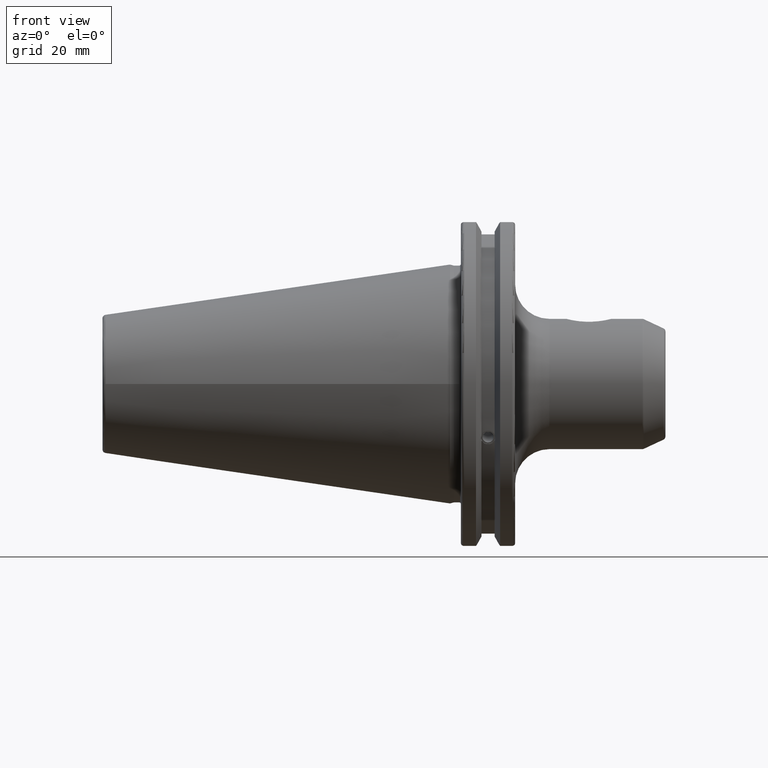
[diagram: clean part render]
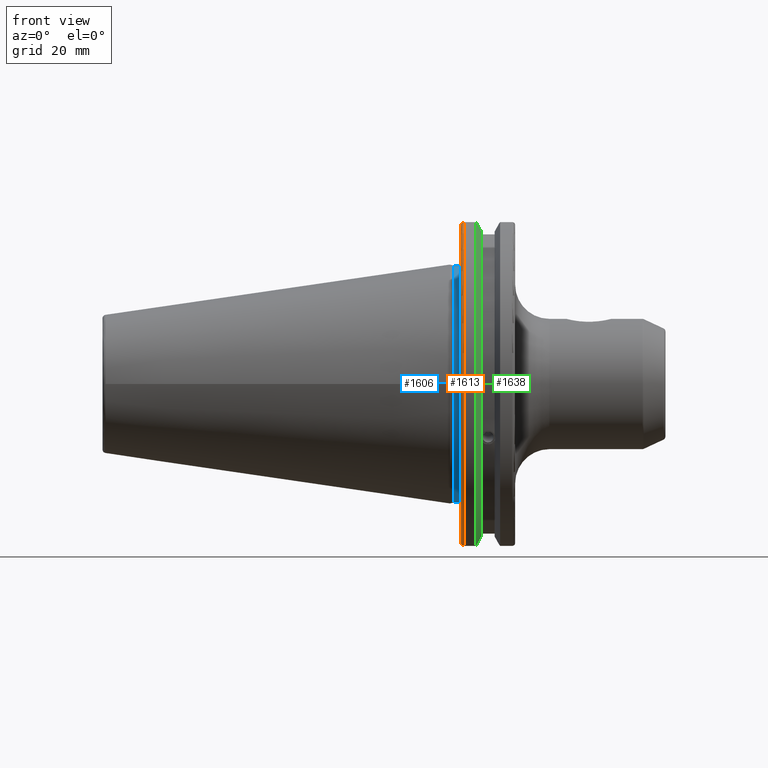
[diagram: same view with three faces highlighted in distinct colors, each labeled with its STEP entity id]
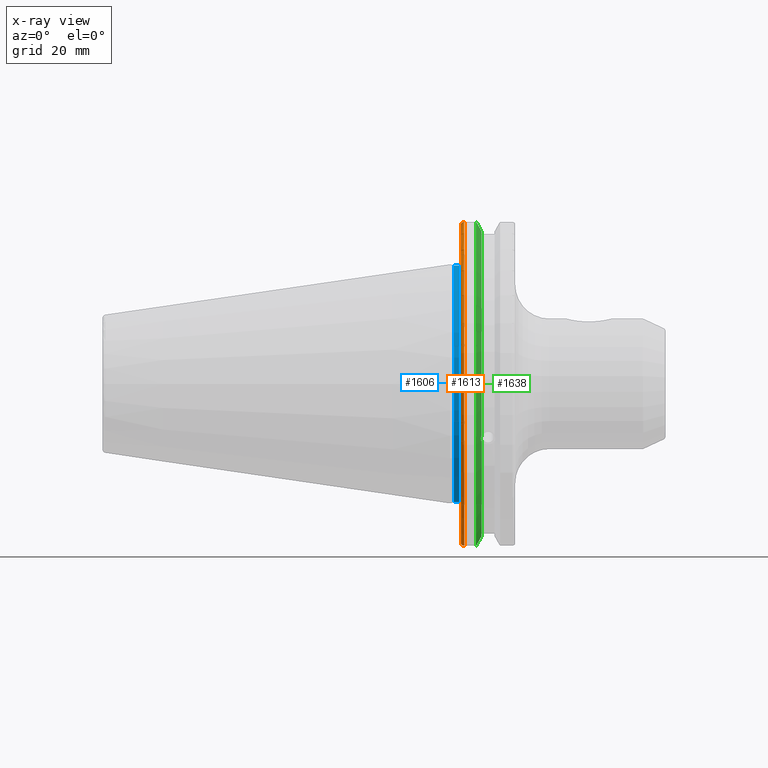
[diagram: x-ray of the same camera — body ghosted, the three highlighted faces saturated]
A machine part, front view with three faces highlighted in distinct colors.
The next image is the same camera in x-ray (body ghosted, the three faces saturated) — at least one of them is partly hidden behind the body in this view.
Their STEP definitions:

[orange] entity #1613 — the highlighted toroidal blend (fillet) surface has major radius 48.2125 mm and minor (blend) radius 1 mm.
#61=TOROIDAL_SURFACE('',#1785,48.2125,1.);
#167=CIRCLE('',#1773,48.2125);
#172=CIRCLE('',#1786,49.2125);
#243=FACE_OUTER_BOUND('',#351,.T.);
#351=EDGE_LOOP('',(#1369,#1370,#1371,#1372,#1373,#1374));
#435=B_SPLINE_CURVE_WITH_KNOTS('',3,(#3223,#3224,#3225,#3226,#3227,#3228),
 .UNSPECIFIED.,.F.,.F.,(4,2,4),(0.0976892167532858,0.112000071948292,0.150881870548587),
 .UNSPECIFIED.);
#436=B_SPLINE_CURVE_WITH_KNOTS('',3,(#3249,#3250,#3251,#3252,#3253,#3254),
 .UNSPECIFIED.,.F.,.F.,(4,2,4),(0.452859340315922,0.491741138916218,0.506051994111223),
 .UNSPECIFIED.);
#437=B_SPLINE_CURVE_WITH_KNOTS('',3,(#3258,#3259,#3260,#3261,#3262,#3263,
#3264,#3265),.UNSPECIFIED.,.F.,.F.,(4,2,2,4),(-0.104075769062722,-0.0730268503455485,
-0.034363987365627,0.),.UNSPECIFIED.);
#438=B_SPLINE_CURVE_WITH_KNOTS('',3,(#3268,#3269,#3270,#3271,#3272,#3273,
#3274,#3275),.UNSPECIFIED.,.F.,.F.,(4,2,2,4),(0.,0.0343639873656262,0.073026850345548,
0.104075769062723),.UNSPECIFIED.);
#750=VERTEX_POINT('',#3101);
#751=VERTEX_POINT('',#3102);
#776=VERTEX_POINT('',#3222);
#782=VERTEX_POINT('',#3247);
#783=VERTEX_POINT('',#3257);
#784=VERTEX_POINT('',#3266);
#951=EDGE_CURVE('',#750,#751,#167,.T.);
#985=EDGE_CURVE('',#776,#750,#435,.T.);
#995=EDGE_CURVE('',#751,#782,#436,.T.);
#997=EDGE_CURVE('',#782,#783,#437,.T.);
#998=EDGE_CURVE('',#783,#784,#172,.T.);
#999=EDGE_CURVE('',#784,#776,#438,.T.);
#1369=ORIENTED_EDGE('',*,*,#997,.T.);
#1370=ORIENTED_EDGE('',*,*,#998,.T.);
#1371=ORIENTED_EDGE('',*,*,#999,.T.);
#1372=ORIENTED_EDGE('',*,*,#985,.T.);
#1373=ORIENTED_EDGE('',*,*,#951,.T.);
#1374=ORIENTED_EDGE('',*,*,#995,.T.);
#1613=ADVANCED_FACE('',(#243),#61,.T.);
#1773=AXIS2_PLACEMENT_3D('',#3103,#2093,#2094);
#1785=AXIS2_PLACEMENT_3D('',#3256,#2144,#2145);
#1786=AXIS2_PLACEMENT_3D('',#3267,#2146,#2147);
#2093=DIRECTION('center_axis',(1.,0.,0.));
#2094=DIRECTION('ref_axis',(0.,-1.,1.60812264967664E-16));
#2144=DIRECTION('center_axis',(1.,0.,0.));
#2145=DIRECTION('ref_axis',(0.,0.,-1.));
#2146=DIRECTION('center_axis',(-1.,0.,0.));
#2147=DIRECTION('ref_axis',(0.,-1.,1.60812264967664E-16));
#3101=CARTESIAN_POINT('',(3.175,-12.95,46.4407434937254));
#3102=CARTESIAN_POINT('',(3.175,-12.95,-46.4407434937254));
#3103=CARTESIAN_POINT('Origin',(3.175,0.,0.));
#3222=CARTESIAN_POINT('',(3.31949794294344,-12.95,46.9780755322918));
#3223=CARTESIAN_POINT('Ctrl Pts',(3.31949794294344,-12.95,46.9780755322918));
#3224=CARTESIAN_POINT('Ctrl Pts',(3.29341556483839,-12.95,46.9333752207329));
#3225=CARTESIAN_POINT('Ctrl Pts',(3.27115672912336,-12.95,46.887363294568));
#3226=CARTESIAN_POINT('Ctrl Pts',(3.20453530071253,-12.95,46.7230464903732));
#3227=CARTESIAN_POINT('Ctrl Pts',(3.175,-12.95,46.5703494890597));
#3228=CARTESIAN_POINT('Ctrl Pts',(3.175,-12.95,46.4407434937254));
#3247=CARTESIAN_POINT('',(3.31949794294343,-12.95,-46.9780755322917));
#3249=CARTESIAN_POINT('Ctrl Pts',(3.175,-12.95,-46.4407434937254));
#3250=CARTESIAN_POINT('Ctrl Pts',(3.175,-12.95,-46.5703494890597));
#3251=CARTESIAN_POINT('Ctrl Pts',(3.20453530071253,-12.95,-46.7230464903732));
#3252=CARTESIAN_POINT('Ctrl Pts',(3.27115672912336,-12.95,-46.887363294568));
#3253=CARTESIAN_POINT('Ctrl Pts',(3.29341556483838,-12.95,-46.9333752207329));
#3254=CARTESIAN_POINT('Ctrl Pts',(3.31949794294343,-12.95,-46.9780755322917));
#3256=CARTESIAN_POINT('Origin',(4.175,0.,0.));
#3257=CARTESIAN_POINT('',(4.175,-13.4317035994433,-47.3440544806494));
#3258=CARTESIAN_POINT('Ctrl Pts',(3.31949794294343,-12.95,-46.9780755322917));
#3259=CARTESIAN_POINT('Ctrl Pts',(3.36785032278753,-13.0300321736484,-47.0388807469102));
#3260=CARTESIAN_POINT('Ctrl Pts',(3.43235971798504,-13.1083611826073,-47.0983919657547));
#3261=CARTESIAN_POINT('Ctrl Pts',(3.58507512107923,-13.2478194810696,-47.2043467509586));
#3262=CARTESIAN_POINT('Ctrl Pts',(3.70638116490964,-13.3242014686233,-47.2623787015413));
#3263=CARTESIAN_POINT('Ctrl Pts',(3.92661103245834,-13.4067722493645,-47.3251126473446));
#3264=CARTESIAN_POINT('Ctrl Pts',(4.06045337544791,-13.4317035994434,-47.3440544806494));
#3265=CARTESIAN_POINT('Ctrl Pts',(4.175,-13.4317035994434,-47.3440544806494));
#3266=CARTESIAN_POINT('',(4.175,-13.4317035994433,47.3440544806494));
#3267=CARTESIAN_POINT('Origin',(4.175,0.,0.));
#3268=CARTESIAN_POINT('Ctrl Pts',(4.175,-13.4317035994433,47.3440544806494));
#3269=CARTESIAN_POINT('Ctrl Pts',(4.06045337544791,-13.4317035994433,47.3440544806494));
#3270=CARTESIAN_POINT('Ctrl Pts',(3.92661103245835,-13.4067722493645,47.3251126473446));
#3271=CARTESIAN_POINT('Ctrl Pts',(3.70638116490965,-13.3242014686233,47.2623787015413));
#3272=CARTESIAN_POINT('Ctrl Pts',(3.58507512107923,-13.2478194810695,47.2043467509586));
#3273=CARTESIAN_POINT('Ctrl Pts',(3.43235971798504,-13.1083611826073,47.0983919657547));
#3274=CARTESIAN_POINT('Ctrl Pts',(3.36785032278754,-13.0300321736484,47.0388807469102));
#3275=CARTESIAN_POINT('Ctrl Pts',(3.31949794294344,-12.95,46.9780755322918));

[blue] entity #1606 — the highlighted cylindrical surface (bore or boss wall) has radius 34.625 mm, axis along (1, 0, 0).
#163=CIRCLE('',#1768,34.625);
#166=CIRCLE('',#1771,34.625);
#169=CIRCLE('',#1776,34.625);
#236=FACE_OUTER_BOUND('',#344,.T.);
#344=EDGE_LOOP('',(#1312,#1313,#1314,#1315,#1316));
#501=LINE('',#3127,#597);
#597=VECTOR('',#2109,34.625);
#747=VERTEX_POINT('',#3093);
#748=VERTEX_POINT('',#3094);
#762=VERTEX_POINT('',#3126);
#947=EDGE_CURVE('',#747,#748,#163,.T.);
#950=EDGE_CURVE('',#748,#747,#166,.T.);
#963=EDGE_CURVE('',#747,#762,#501,.T.);
#964=EDGE_CURVE('',#762,#762,#169,.T.);
#1312=ORIENTED_EDGE('',*,*,#947,.F.);
#1313=ORIENTED_EDGE('',*,*,#963,.T.);
#1314=ORIENTED_EDGE('',*,*,#964,.T.);
#1315=ORIENTED_EDGE('',*,*,#963,.F.);
#1316=ORIENTED_EDGE('',*,*,#950,.F.);
#1553=CYLINDRICAL_SURFACE('',#1775,34.625);
#1606=ADVANCED_FACE('',(#236),#1553,.T.);
#1768=AXIS2_PLACEMENT_3D('',#3095,#2083,#2084);
#1771=AXIS2_PLACEMENT_3D('',#3099,#2089,#2090);
#1775=AXIS2_PLACEMENT_3D('',#3125,#2107,#2108);
#1776=AXIS2_PLACEMENT_3D('',#3128,#2110,#2111);
#2083=DIRECTION('center_axis',(1.,0.,0.));
#2084=DIRECTION('ref_axis',(0.,-1.,1.83697019872103E-16));
#2089=DIRECTION('center_axis',(1.,0.,0.));
#2090=DIRECTION('ref_axis',(0.,-1.,1.83697019872103E-16));
#2107=DIRECTION('center_axis',(1.,0.,0.));
#2108=DIRECTION('ref_axis',(0.,1.,0.));
#2109=DIRECTION('',(-1.,0.,0.));
#2110=DIRECTION('center_axis',(1.,0.,0.));
#2111=DIRECTION('ref_axis',(0.,0.,-1.));
#3093=CARTESIAN_POINT('',(2.675,-34.625,-4.24033954204771E-15));
#3094=CARTESIAN_POINT('',(2.675,-4.24033954204771E-15,34.625));
#3095=CARTESIAN_POINT('Origin',(2.675,0.,0.));
#3099=CARTESIAN_POINT('Origin',(2.675,0.,0.));
#3125=CARTESIAN_POINT('Origin',(2.14730762113533,0.,0.));
#3126=CARTESIAN_POINT('',(1.11961524227064,-34.625,-4.24033954204771E-15));
#3127=CARTESIAN_POINT('',(2.14730762113533,-34.625,-4.24033954204771E-15));
#3128=CARTESIAN_POINT('Origin',(1.11961524227064,0.,0.));

[green] entity #1638 — the highlighted conical surface has half-angle 60 deg.
#24=(
BOUNDED_CURVE()
B_SPLINE_CURVE(2,(#3232,#3233,#3234),.UNSPECIFIED.,.F.,.F.)
B_SPLINE_CURVE_WITH_KNOTS((3,3),(0.,0.275823910674838),.UNSPECIFIED.)
CURVE()
GEOMETRIC_REPRESENTATION_ITEM()
RATIONAL_B_SPLINE_CURVE((1.,1.00038235573924,1.00012873636598))
REPRESENTATION_ITEM('')
);
#25=(
BOUNDED_CURVE()
B_SPLINE_CURVE(2,(#3244,#3245,#3246),.UNSPECIFIED.,.F.,.F.)
B_SPLINE_CURVE_WITH_KNOTS((3,3),(0.0558332664495948,0.331657177124508),
 .UNSPECIFIED.)
CURVE()
GEOMETRIC_REPRESENTATION_ITEM()
RATIONAL_B_SPLINE_CURVE((1.00012873636704,1.00038235574237,1.))
REPRESENTATION_ITEM('')
);
#26=(
BOUNDED_CURVE()
B_SPLINE_CURVE(2,(#3279,#3280,#3281),.UNSPECIFIED.,.F.,.F.)
B_SPLINE_CURVE_WITH_KNOTS((3,3),(0.,0.0648240472896605),.UNSPECIFIED.)
CURVE()
GEOMETRIC_REPRESENTATION_ITEM()
RATIONAL_B_SPLINE_CURVE((1.,1.00011477674868,1.00019140646002))
REPRESENTATION_ITEM('')
);
#27=(
BOUNDED_CURVE()
B_SPLINE_CURVE(2,(#3287,#3288,#3289),.UNSPECIFIED.,.F.,.F.)
B_SPLINE_CURVE_WITH_KNOTS((3,3),(0.325260944932437,0.390084992222203),
 .UNSPECIFIED.)
CURVE()
GEOMETRIC_REPRESENTATION_ITEM()
RATIONAL_B_SPLINE_CURVE((1.00019140645964,1.00011477674846,1.))
REPRESENTATION_ITEM('')
);
#75=CONICAL_SURFACE('',#1823,47.8172386482472,1.0471975511966);
#151=CIRCLE('',#1742,46.4219772964944);
#173=CIRCLE('',#1789,49.2125);
#185=CIRCLE('',#1824,46.4219772964944);
#268=FACE_OUTER_BOUND('',#377,.T.);
#377=EDGE_LOOP('',(#1484,#1485,#1486,#1487,#1488,#1489,#1490,#1491));
#414=B_SPLINE_CURVE_WITH_KNOTS('',3,(#2774,#2775,#2776,#2777,#2778,#2779,
#2780,#2781,#2782,#2783,#2784,#2785,#2786,#2787),.UNSPECIFIED.,.F.,.F.,
(4,2,2,2,2,2,4),(0.426712868358721,0.441644498666905,0.480313313223129,
0.518982127779353,0.557650942335576,0.5963197568918,0.611251387199984),
 .UNSPECIFIED.);
#699=VERTEX_POINT('',#2771);
#700=VERTEX_POINT('',#2773);
#717=VERTEX_POINT('',#2864);
#777=VERTEX_POINT('',#3229);
#778=VERTEX_POINT('',#3231);
#781=VERTEX_POINT('',#3243);
#785=VERTEX_POINT('',#3277);
#786=VERTEX_POINT('',#3283);
#884=EDGE_CURVE('',#700,#699,#414,.T.);
#907=EDGE_CURVE('',#700,#717,#151,.T.);
#987=EDGE_CURVE('',#778,#777,#24,.T.);
#993=EDGE_CURVE('',#781,#717,#25,.T.);
#1001=EDGE_CURVE('',#785,#777,#26,.T.);
#1003=EDGE_CURVE('',#785,#786,#173,.T.);
#1004=EDGE_CURVE('',#781,#786,#27,.T.);
#1037=EDGE_CURVE('',#778,#699,#185,.T.);
#1484=ORIENTED_EDGE('',*,*,#884,.T.);
#1485=ORIENTED_EDGE('',*,*,#1037,.F.);
#1486=ORIENTED_EDGE('',*,*,#987,.T.);
#1487=ORIENTED_EDGE('',*,*,#1001,.F.);
#1488=ORIENTED_EDGE('',*,*,#1003,.T.);
#1489=ORIENTED_EDGE('',*,*,#1004,.F.);
#1490=ORIENTED_EDGE('',*,*,#993,.T.);
#1491=ORIENTED_EDGE('',*,*,#907,.F.);
#1638=ADVANCED_FACE('',(#268),#75,.T.);
#1742=AXIS2_PLACEMENT_3D('',#2865,#2017,#2018);
#1789=AXIS2_PLACEMENT_3D('',#3285,#2154,#2155);
#1823=AXIS2_PLACEMENT_3D('',#3382,#2237,#2238);
#1824=AXIS2_PLACEMENT_3D('',#3383,#2239,#2240);
#2017=DIRECTION('center_axis',(1.,0.,0.));
#2018=DIRECTION('ref_axis',(0.,0.,-1.));
#2154=DIRECTION('center_axis',(1.,0.,0.));
#2155=DIRECTION('ref_axis',(0.,0.,-1.));
#2237=DIRECTION('center_axis',(-1.,0.,0.));
#2238=DIRECTION('ref_axis',(0.,-1.,-1.22464679914735E-16));
#2239=DIRECTION('center_axis',(1.,0.,0.));
#2240=DIRECTION('ref_axis',(0.,0.,-1.));
#2771=CARTESIAN_POINT('',(9.21200000000001,-43.9096390749305,-15.0646464421033));
#2773=CARTESIAN_POINT('',(9.21200000000001,-43.3201030900029,-16.6843832486479));
#2774=CARTESIAN_POINT('Ctrl Pts',(9.212,-43.3201030900029,-16.6843832486479));
#2775=CARTESIAN_POINT('Ctrl Pts',(9.19501843903392,-43.3613106941341,-16.6592273018006));
#2776=CARTESIAN_POINT('Ctrl Pts',(9.17898675403323,-43.4012416983557,-16.6326763251437));
#2777=CARTESIAN_POINT('Ctrl Pts',(9.12528673845038,-43.539103734322,-16.5325130832406));
#2778=CARTESIAN_POINT('Ctrl Pts',(9.08911610663556,-43.6406982153491,-16.4411807953719));
#2779=CARTESIAN_POINT('Ctrl Pts',(9.03980868251976,-43.8110833825827,-16.2291323464527));
#2780=CARTESIAN_POINT('Ctrl Pts',(9.027,-43.8794096049168,-16.10796730316));
#2781=CARTESIAN_POINT('Ctrl Pts',(9.027,-43.9675796948952,-15.8657219718732));
#2782=CARTESIAN_POINT('Ctrl Pts',(9.03980868251976,-43.9931221605126,-15.7289849146254));
#2783=CARTESIAN_POINT('Ctrl Pts',(9.08911610663556,-43.9989016655819,-15.4570249042867));
#2784=CARTESIAN_POINT('Ctrl Pts',(9.12528673845038,-43.9797830409458,-15.3217566390708));
#2785=CARTESIAN_POINT('Ctrl Pts',(9.17898675403323,-43.9385582852181,-15.1564111356409));
#2786=CARTESIAN_POINT('Ctrl Pts',(9.19501843903392,-43.9250360001461,-15.1104047527575));
#2787=CARTESIAN_POINT('Ctrl Pts',(9.212,-43.9096390749305,-15.0646464421033));
#2864=CARTESIAN_POINT('',(9.21200000000001,-12.95,-44.5791147973604));
#2865=CARTESIAN_POINT('Origin',(9.21200000000001,0.,0.));
#3229=CARTESIAN_POINT('',(7.87928960562423,-12.95,46.9780755322918));
#3231=CARTESIAN_POINT('',(9.21200000000001,-12.95,44.5791147973604));
#3232=CARTESIAN_POINT('Ctrl Pts',(9.21200000000001,-12.95,44.5791147973604));
#3233=CARTESIAN_POINT('Ctrl Pts',(8.56310449055921,-12.95,45.7494966802136));
#3234=CARTESIAN_POINT('Ctrl Pts',(7.87928960562423,-12.95,46.9780755322918));
#3243=CARTESIAN_POINT('',(7.87928960562424,-12.95,-46.9780755322918));
#3244=CARTESIAN_POINT('Ctrl Pts',(7.87928960562424,-12.95,-46.9780755322918));
#3245=CARTESIAN_POINT('Ctrl Pts',(8.56310449055802,-12.95,-45.7494966802158));
#3246=CARTESIAN_POINT('Ctrl Pts',(9.21200000000001,-12.95,-44.5791147973604));
#3277=CARTESIAN_POINT('',(7.60089096595127,-13.4317035994433,47.3440544806494));
#3279=CARTESIAN_POINT('Ctrl Pts',(7.60089096595127,-13.4317035994433,47.3440544806494));
#3280=CARTESIAN_POINT('Ctrl Pts',(7.74116896663826,-13.1896660169965,47.1601640966263));
#3281=CARTESIAN_POINT('Ctrl Pts',(7.87928960562423,-12.95,46.9780755322918));
#3283=CARTESIAN_POINT('',(7.60089096595127,-13.4317035994433,-47.3440544806494));
#3285=CARTESIAN_POINT('Origin',(7.60089096595127,0.,0.));
#3287=CARTESIAN_POINT('Ctrl Pts',(7.87928960562424,-12.95,-46.9780755322918));
#3288=CARTESIAN_POINT('Ctrl Pts',(7.7411689666382,-13.1896660169966,-47.1601640966264));
#3289=CARTESIAN_POINT('Ctrl Pts',(7.60089096595127,-13.4317035994433,-47.3440544806494));
#3382=CARTESIAN_POINT('Origin',(8.40644548297563,0.,0.));
#3383=CARTESIAN_POINT('Origin',(9.21200000000001,0.,0.));